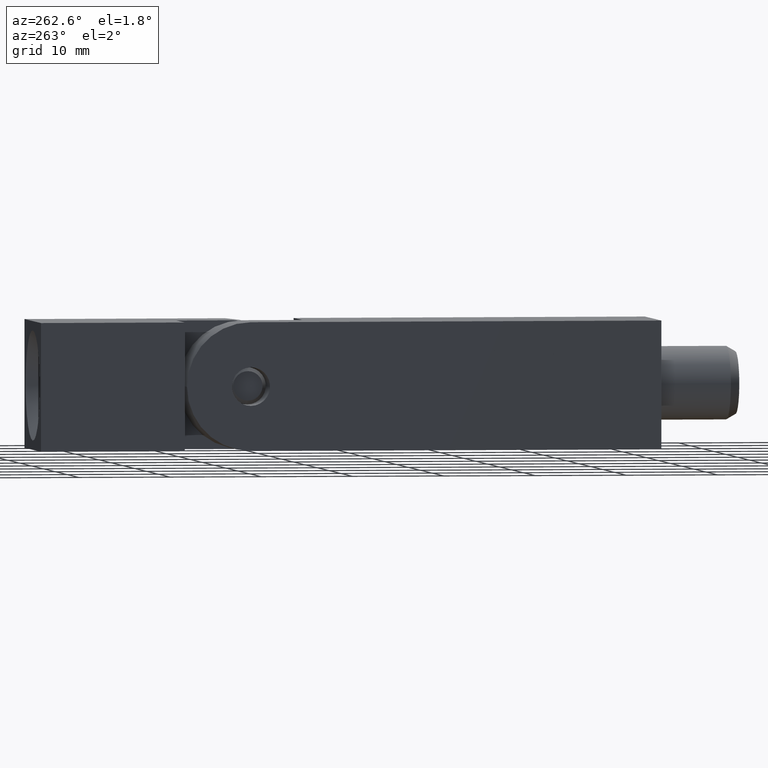
[diagram: clean part render]
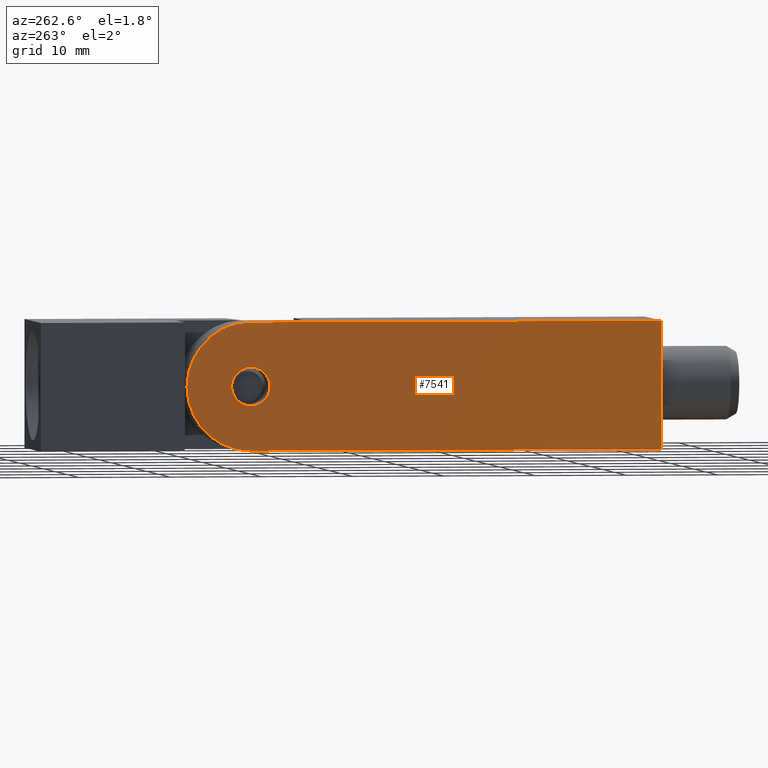
[diagram: same view with one face highlighted and labeled with its STEP entity id]
A machine part, auxiliary view. The second image highlights one B-rep face of the part: STEP entity #7541.
In plain terms, the highlighted planar face has unit normal (1, 0, -0).
Its self-contained STEP definition (entity closure, byte-faithful):
#529 = ORIENTED_EDGE ( 'NONE', *, *, #7237, .F. ) ;
#676 = CARTESIAN_POINT ( 'NONE',  ( -6.999999999999999100, 45.00000000000000000, -2.099999999999997900 ) ) ;
#794 = EDGE_LOOP ( 'NONE', ( #8909, #1384 ) ) ;
#883 = EDGE_CURVE ( 'NONE', #11748, #14140, #7405, .T. ) ;
#1384 = ORIENTED_EDGE ( 'NONE', *, *, #11476, .F. ) ;
#1933 = VERTEX_POINT ( 'NONE', #13813 ) ;
#1944 = VERTEX_POINT ( 'NONE', #12808 ) ;
#2120 = DIRECTION ( 'NONE',  ( -2.478176394252581600E-016, 0.0000000000000000000, -1.000000000000000000 ) ) ;
#2179 = LINE ( 'NONE', #13922, #2353 ) ;
#2353 = VECTOR ( 'NONE', #12493, 1000.000000000000000 ) ;
#3363 = CARTESIAN_POINT ( 'NONE',  ( -6.999999999999999100, 51.99999999999999300, 7.000000000000006200 ) ) ;
#3952 = VERTEX_POINT ( 'NONE', #12891 ) ;
#4170 = EDGE_CURVE ( 'NONE', #3952, #11414, #2179, .T. ) ;
#5308 = DIRECTION ( 'NONE',  ( -1.000000000000000000, -0.0000000000000000000, 1.445602896647339200E-016 ) ) ;
#5321 = EDGE_CURVE ( 'NONE', #1944, #3952, #5546, .T. ) ;
#5524 = AXIS2_PLACEMENT_3D ( 'NONE', #6821, #12534, #10158 ) ;
#5546 = LINE ( 'NONE', #8468, #12310 ) ;
#6058 = CIRCLE ( 'NONE', #5524, 2.099999999999997900 ) ;
#6119 = FACE_OUTER_BOUND ( 'NONE', #7127, .T. ) ;
#6457 = DIRECTION ( 'NONE',  ( 0.0000000000000000000, 0.0000000000000000000, 1.000000000000000000 ) ) ;
#6478 = AXIS2_PLACEMENT_3D ( 'NONE', #9360, #12918, #2120 ) ;
#6821 = CARTESIAN_POINT ( 'NONE',  ( -6.999999999999999100, 45.00000000000000000, 0.0000000000000000000 ) ) ;
#6829 = CIRCLE ( 'NONE', #14564, 7.000000000000000000 ) ;
#6831 = AXIS2_PLACEMENT_3D ( 'NONE', #7566, #5308, #6457 ) ;
#7127 = EDGE_LOOP ( 'NONE', ( #11059, #13187, #13143, #11008, #529 ) ) ;
#7237 = EDGE_CURVE ( 'NONE', #9338, #11414, #14146, .T. ) ;
#7281 = DIRECTION ( 'NONE',  ( 1.000000000000000000, 0.0000000000000000000, -1.858632295689436300E-016 ) ) ;
#7405 = CIRCLE ( 'NONE', #6831, 2.099999999999997900 ) ;
#7541 = ADVANCED_FACE ( 'NONE', ( #7935, #6119 ), #13047, .F. ) ;
#7566 = CARTESIAN_POINT ( 'NONE',  ( -6.999999999999999100, 45.00000000000000000, 0.0000000000000000000 ) ) ;
#7935 = FACE_BOUND ( 'NONE', #794, .T. ) ;
#8468 = CARTESIAN_POINT ( 'NONE',  ( -6.999999999999999100, 51.99999999999999300, -6.999999999999999100 ) ) ;
#8909 = ORIENTED_EDGE ( 'NONE', *, *, #883, .F. ) ;
#9131 = CARTESIAN_POINT ( 'NONE',  ( -6.999999999999999100, 45.00000000000000000, 0.0000000000000000000 ) ) ;
#9338 = VERTEX_POINT ( 'NONE', #14701 ) ;
#9360 = CARTESIAN_POINT ( 'NONE',  ( -6.999999999999999100, 45.00000000000000000, 0.0000000000000000000 ) ) ;
#9540 = VECTOR ( 'NONE', #11335, 1000.000000000000000 ) ;
#9672 = EDGE_CURVE ( 'NONE', #9338, #1933, #6829, .T. ) ;
#9719 = DIRECTION ( 'NONE',  ( -1.858632295689436300E-016, 0.0000000000000000000, -1.000000000000000000 ) ) ;
#10158 = DIRECTION ( 'NONE',  ( 0.0000000000000000000, 0.0000000000000000000, 1.000000000000000000 ) ) ;
#10279 = DIRECTION ( 'NONE',  ( -1.000000000000000000, -0.0000000000000000000, 1.858632295689436300E-016 ) ) ;
#10552 = CARTESIAN_POINT ( 'NONE',  ( -6.999999999999999100, 45.00000000000000000, 2.099999999999997900 ) ) ;
#10671 = CARTESIAN_POINT ( 'NONE',  ( -6.999999999999999100, 51.99999999999999300, -6.999999999999999100 ) ) ;
#11008 = ORIENTED_EDGE ( 'NONE', *, *, #4170, .T. ) ;
#11059 = ORIENTED_EDGE ( 'NONE', *, *, #9672, .T. ) ;
#11335 = DIRECTION ( 'NONE',  ( -0.0000000000000000000, -1.000000000000000000, -0.0000000000000000000 ) ) ;
#11414 = VERTEX_POINT ( 'NONE', #11989 ) ;
#11476 = EDGE_CURVE ( 'NONE', #14140, #11748, #6058, .T. ) ;
#11619 = AXIS2_PLACEMENT_3D ( 'NONE', #10671, #7281, #9719 ) ;
#11748 = VERTEX_POINT ( 'NONE', #10552 ) ;
#11989 = CARTESIAN_POINT ( 'NONE',  ( -6.999999999999999100, 0.0000000000000000000, 7.000000000000006200 ) ) ;
#12310 = VECTOR ( 'NONE', #14123, 1000.000000000000000 ) ;
#12493 = DIRECTION ( 'NONE',  ( 1.858632295689436600E-016, 0.0000000000000000000, 1.000000000000000000 ) ) ;
#12534 = DIRECTION ( 'NONE',  ( -1.000000000000000000, -0.0000000000000000000, 1.445602896647339200E-016 ) ) ;
#12808 = CARTESIAN_POINT ( 'NONE',  ( -6.999999999999999100, 45.00000000000000000, -6.999999999999999100 ) ) ;
#12891 = CARTESIAN_POINT ( 'NONE',  ( -6.999999999999999100, 0.0000000000000000000, -6.999999999999999100 ) ) ;
#12918 = DIRECTION ( 'NONE',  ( -1.000000000000000000, -0.0000000000000000000, 1.858632295689436300E-016 ) ) ;
#13047 = PLANE ( 'NONE',  #11619 ) ;
#13143 = ORIENTED_EDGE ( 'NONE', *, *, #5321, .T. ) ;
#13187 = ORIENTED_EDGE ( 'NONE', *, *, #13538, .T. ) ;
#13538 = EDGE_CURVE ( 'NONE', #1933, #1944, #13724, .T. ) ;
#13724 = CIRCLE ( 'NONE', #6478, 7.000000000000000000 ) ;
#13813 = CARTESIAN_POINT ( 'NONE',  ( -6.999999999999999100, 51.99999999999999300, 0.0000000000000000000 ) ) ;
#13874 = DIRECTION ( 'NONE',  ( -2.478176394252581600E-016, 0.0000000000000000000, -1.000000000000000000 ) ) ;
#13922 = CARTESIAN_POINT ( 'NONE',  ( -6.999999999999999100, 0.0000000000000000000, -6.999999999999999100 ) ) ;
#14123 = DIRECTION ( 'NONE',  ( -0.0000000000000000000, -1.000000000000000000, -0.0000000000000000000 ) ) ;
#14140 = VERTEX_POINT ( 'NONE', #676 ) ;
#14146 = LINE ( 'NONE', #3363, #9540 ) ;
#14564 = AXIS2_PLACEMENT_3D ( 'NONE', #9131, #10279, #13874 ) ;
#14701 = CARTESIAN_POINT ( 'NONE',  ( -6.999999999999999100, 45.00000000000000000, 7.000000000000006200 ) ) ;